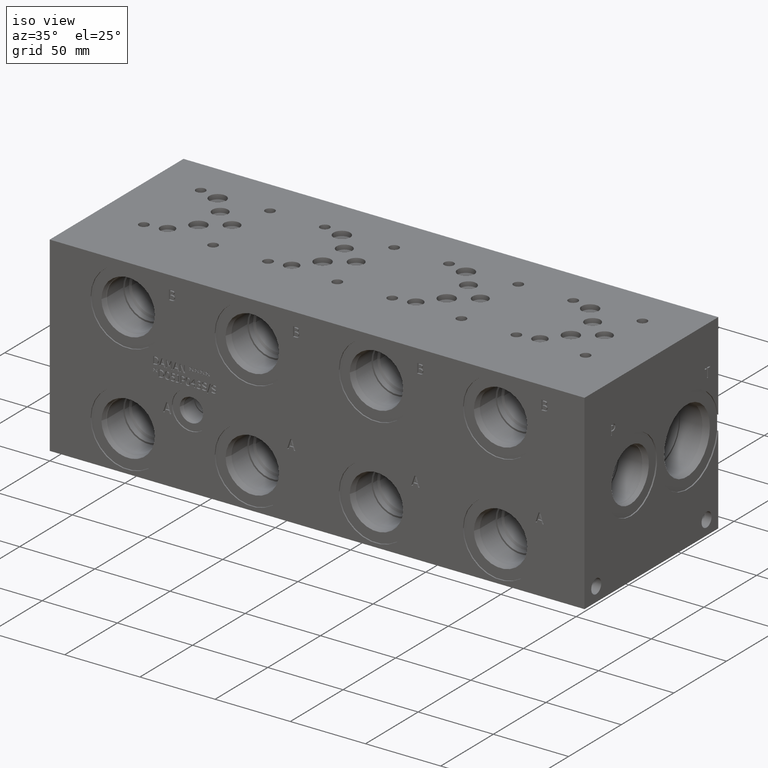
[diagram: clean part render]
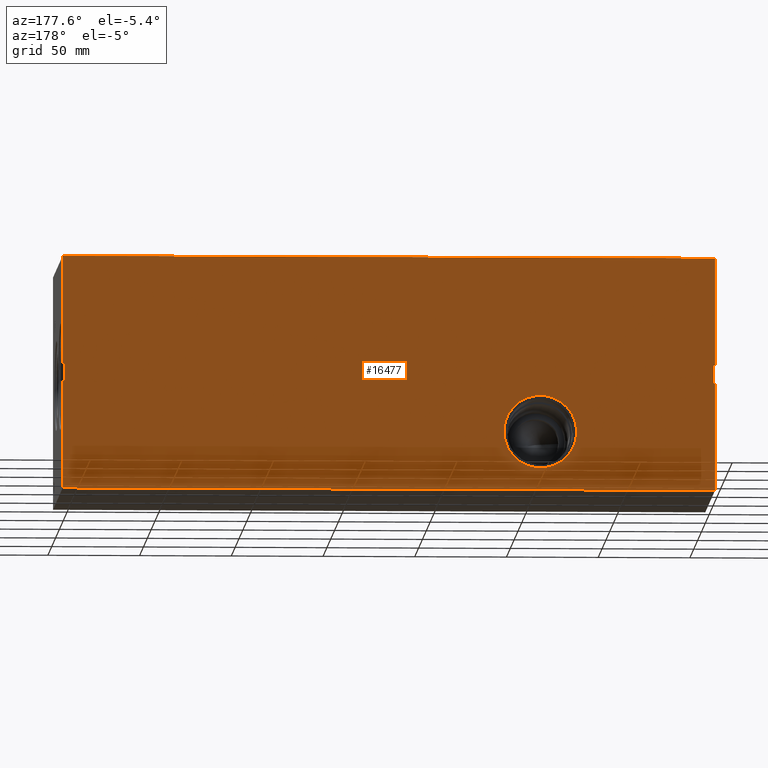
[diagram: tour spotlight — one face highlighted and labeled with its STEP entity id]
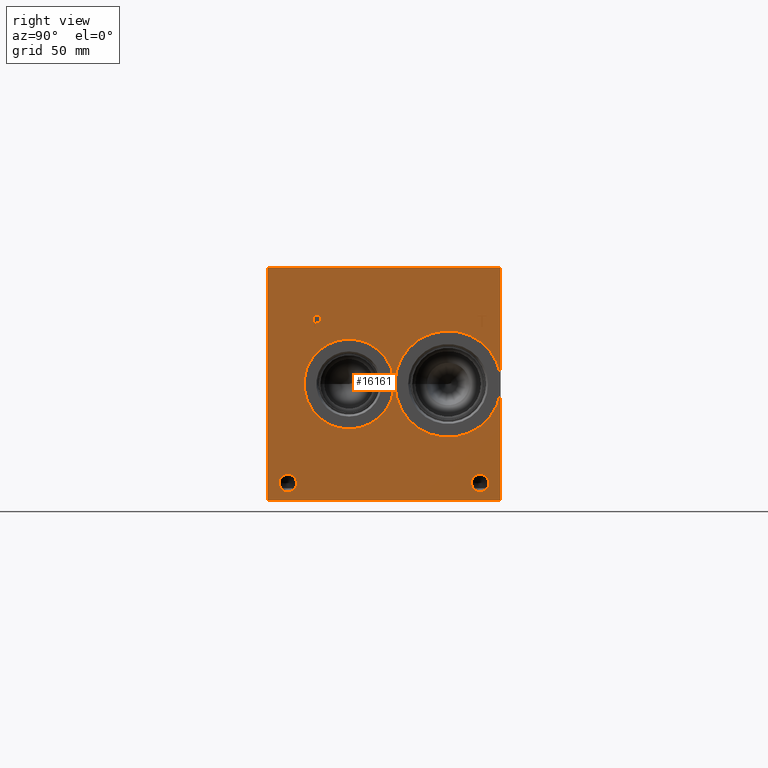
[diagram: tour spotlight — one face highlighted and labeled with its STEP entity id]
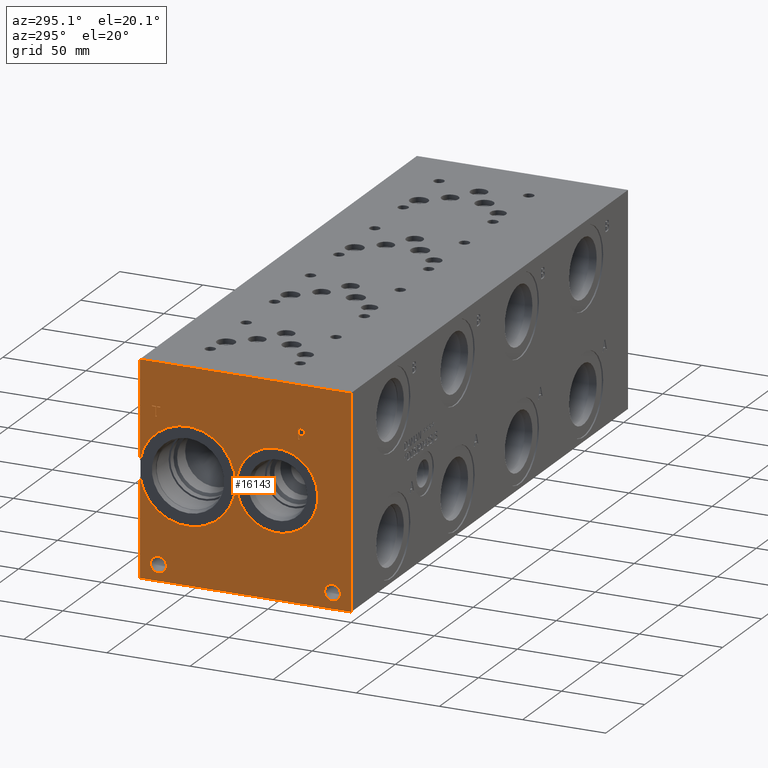
[diagram: tour spotlight — one face highlighted and labeled with its STEP entity id]
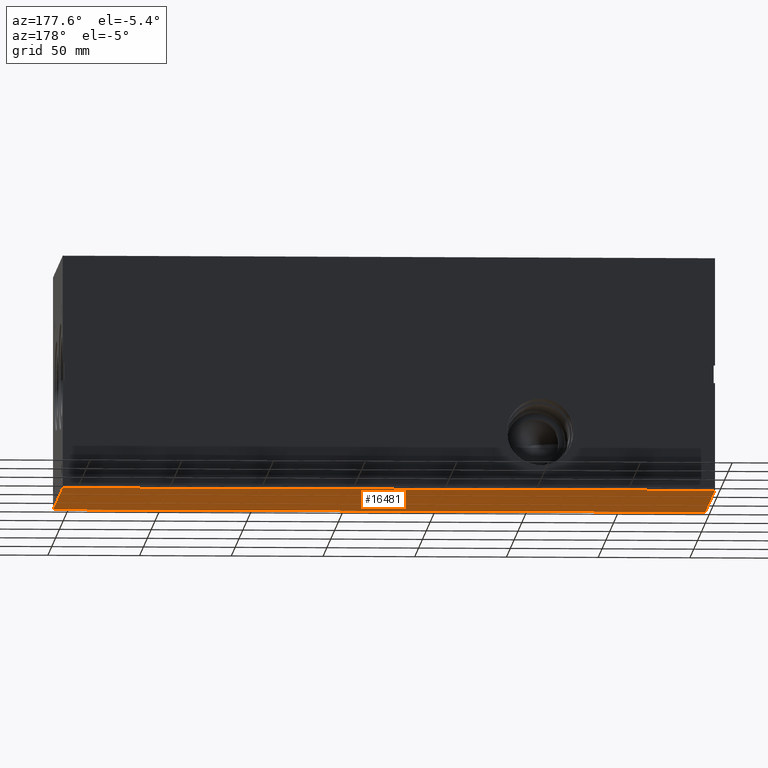
[diagram: tour spotlight — one face highlighted and labeled with its STEP entity id]
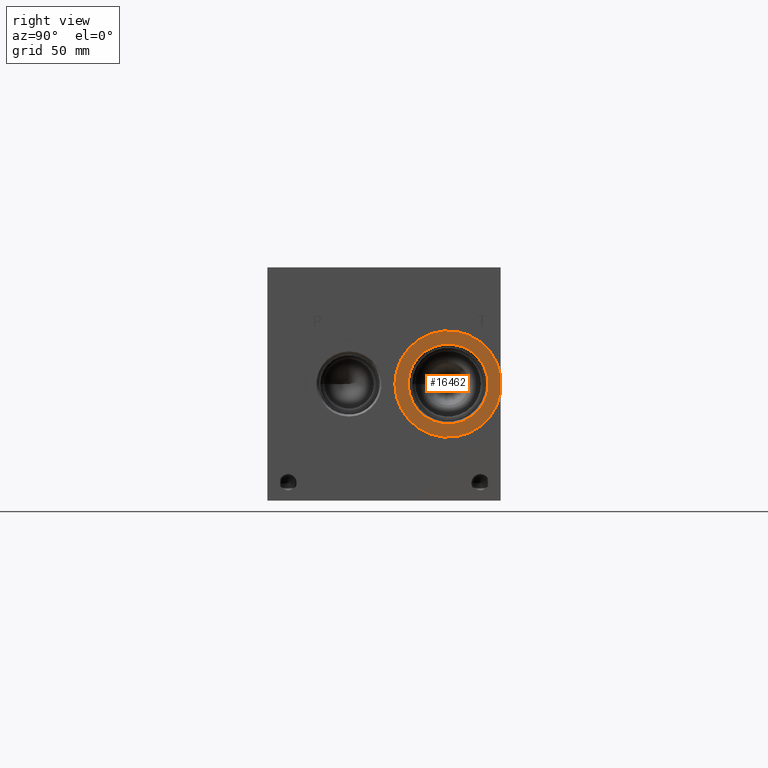
[diagram: tour spotlight — one face highlighted and labeled with its STEP entity id]
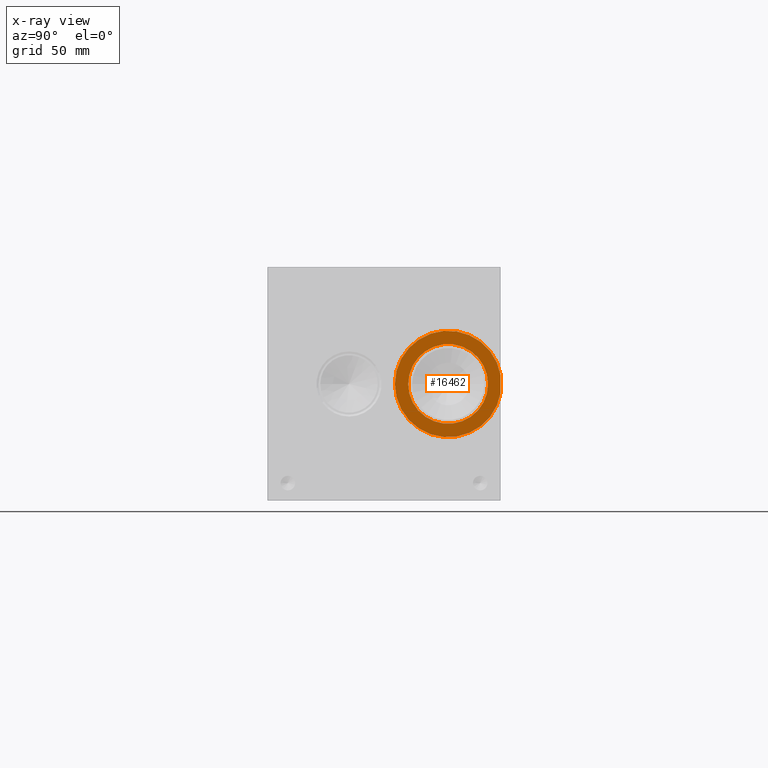
[diagram: x-ray of the same camera — body ghosted, this tour face saturated]
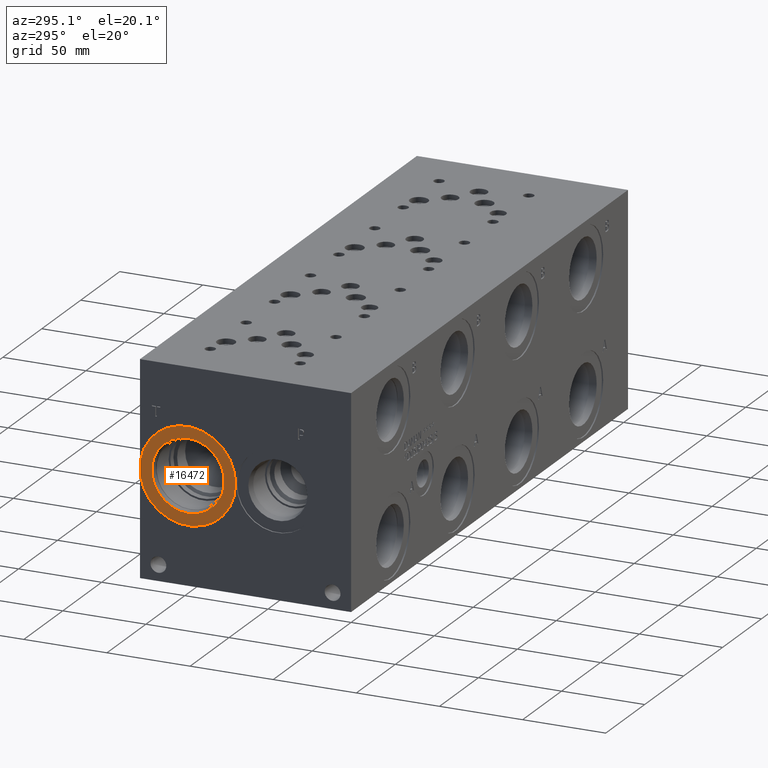
[diagram: tour spotlight — one face highlighted and labeled with its STEP entity id]
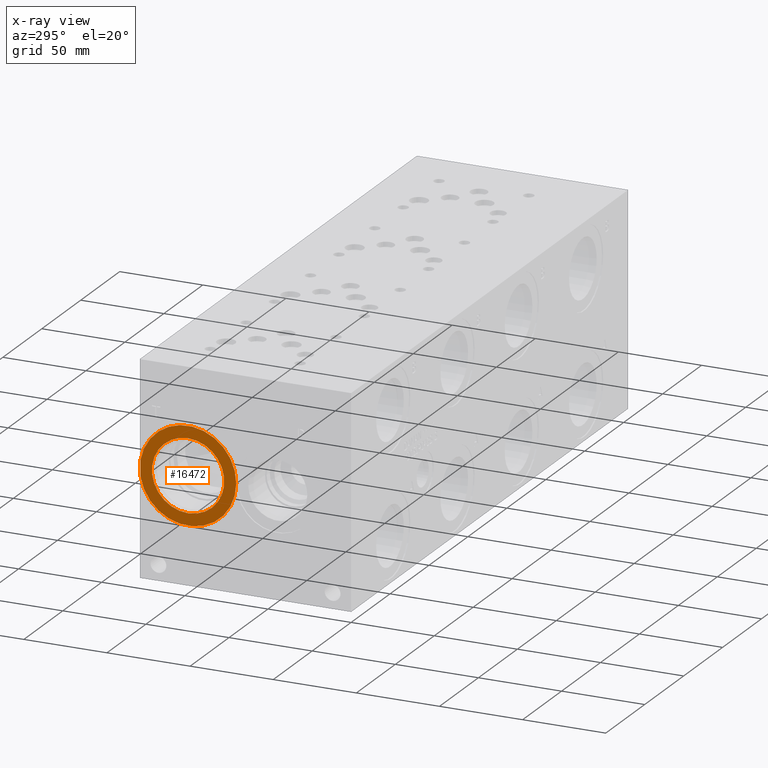
[diagram: x-ray of the same camera — body ghosted, this tour face saturated]
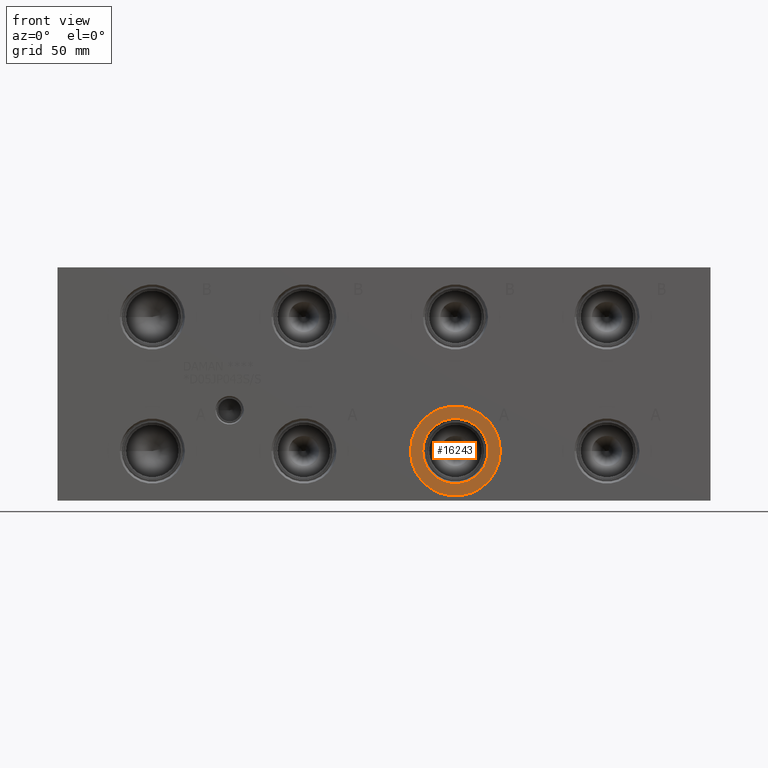
[diagram: tour spotlight — one face highlighted and labeled with its STEP entity id]
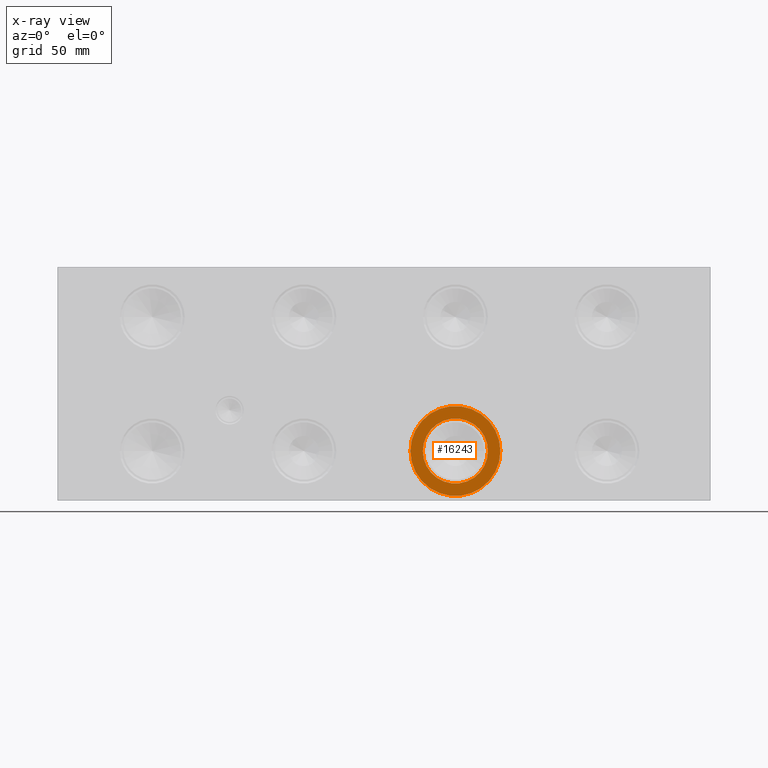
[diagram: x-ray of the same camera — body ghosted, this tour face saturated]
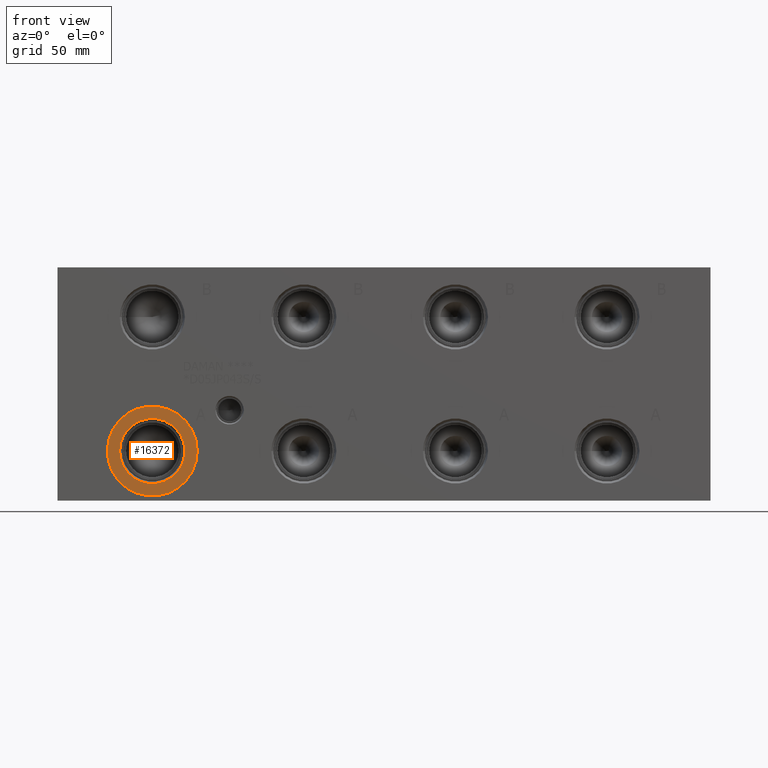
[diagram: tour spotlight — one face highlighted and labeled with its STEP entity id]
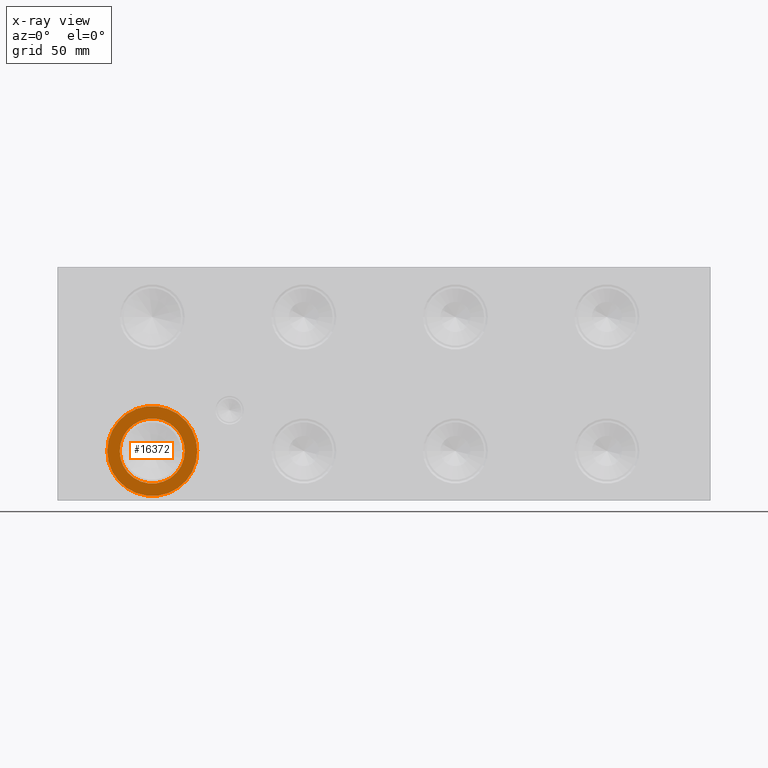
[diagram: x-ray of the same camera — body ghosted, this tour face saturated]
A machine part: a face-by-face anatomy tour. The part has 865 B-rep faces; the first image is the clean iso view, then the 8 largest visible faces are spotlighted one at a time (largest first), each with its STEP entity span.

Face 1 — auxiliary view, entity #16477. In plain terms, the highlighted planar face has unit normal (0, 1, 0).
Definition (entity closure, byte-faithful):
#482=CIRCLE('',#16903,19.8374);
#483=CIRCLE('',#16904,19.8374);
#1448=FACE_BOUND('',#3330,.T.);
#2345=FACE_OUTER_BOUND('',#3329,.T.);
#3329=EDGE_LOOP('',(#14538,#14539,#14540,#14541,#14542,#14543,#14544,#14545,
#14546,#14547,#14548,#14549));
#3330=EDGE_LOOP('',(#14550,#14551));
#4441=LINE('',#26749,#5852);
#4444=LINE('',#26753,#5855);
#4485=LINE('',#26988,#5896);
#4488=LINE('',#26992,#5899);
#4765=LINE('',#28561,#6176);
#4766=LINE('',#28566,#6177);
#4767=LINE('',#28567,#6178);
#4774=LINE('',#28606,#6185);
#4775=LINE('',#28613,#6186);
#4776=LINE('',#28614,#6187);
#4780=LINE('',#28630,#6191);
#4781=LINE('',#28631,#6192);
#5852=VECTOR('',#19475,10.);
#5855=VECTOR('',#19478,10.);
#5896=VECTOR('',#19553,10.);
#5899=VECTOR('',#19556,10.);
#6176=VECTOR('',#21347,10.);
#6177=VECTOR('',#21354,10.);
#6178=VECTOR('',#21355,10.);
#6185=VECTOR('',#21400,10.);
#6186=VECTOR('',#21409,10.);
#6187=VECTOR('',#21410,10.);
#6191=VECTOR('',#21430,10.);
#6192=VECTOR('',#21431,10.);
#7167=VERTEX_POINT('',#26745);
#7168=VERTEX_POINT('',#26746);
#7169=VERTEX_POINT('',#26748);
#7170=VERTEX_POINT('',#26751);
#7217=VERTEX_POINT('',#26984);
#7218=VERTEX_POINT('',#26985);
#7219=VERTEX_POINT('',#26987);
#7220=VERTEX_POINT('',#26990);
#7251=VERTEX_POINT('',#27088);
#7252=VERTEX_POINT('',#27089);
#7754=VERTEX_POINT('',#28559);
#7755=VERTEX_POINT('',#28560);
#7768=VERTEX_POINT('',#28604);
#7769=VERTEX_POINT('',#28605);
#9227=EDGE_CURVE('',#7169,#7168,#4441,.T.);
#9230=EDGE_CURVE('',#7167,#7170,#4444,.T.);
#9294=EDGE_CURVE('',#7218,#7219,#4485,.T.);
#9297=EDGE_CURVE('',#7220,#7217,#4488,.T.);
#9344=EDGE_CURVE('',#7251,#7252,#482,.T.);
#9345=EDGE_CURVE('',#7252,#7251,#483,.T.);
#10030=EDGE_CURVE('',#7754,#7755,#4765,.T.);
#10033=EDGE_CURVE('',#7755,#7217,#4766,.T.);
#10034=EDGE_CURVE('',#7218,#7754,#4767,.T.);
#10051=EDGE_CURVE('',#7768,#7769,#4774,.T.);
#10055=EDGE_CURVE('',#7168,#7768,#4775,.T.);
#10056=EDGE_CURVE('',#7769,#7167,#4776,.T.);
#10064=EDGE_CURVE('',#7220,#7169,#4780,.T.);
#10065=EDGE_CURVE('',#7219,#7170,#4781,.T.);
#14538=ORIENTED_EDGE('',*,*,#10033,.T.);
#14539=ORIENTED_EDGE('',*,*,#9297,.F.);
#14540=ORIENTED_EDGE('',*,*,#10064,.T.);
#14541=ORIENTED_EDGE('',*,*,#9227,.T.);
#14542=ORIENTED_EDGE('',*,*,#10055,.T.);
#14543=ORIENTED_EDGE('',*,*,#10051,.T.);
#14544=ORIENTED_EDGE('',*,*,#10056,.T.);
#14545=ORIENTED_EDGE('',*,*,#9230,.T.);
#14546=ORIENTED_EDGE('',*,*,#10065,.F.);
#14547=ORIENTED_EDGE('',*,*,#9294,.F.);
#14548=ORIENTED_EDGE('',*,*,#10034,.T.);
#14549=ORIENTED_EDGE('',*,*,#10030,.T.);
#14550=ORIENTED_EDGE('',*,*,#9344,.T.);
#14551=ORIENTED_EDGE('',*,*,#9345,.T.);
#15070=PLANE('',#17668);
#16477=ADVANCED_FACE('',(#2345,#1448),#15070,.T.);
#16903=AXIS2_PLACEMENT_3D('',#27090,#19647,#19648);
#16904=AXIS2_PLACEMENT_3D('',#27091,#19649,#19650);
#17668=AXIS2_PLACEMENT_3D('',#28629,#21428,#21429);
#19475=DIRECTION('',(0.,0.,1.));
#19478=DIRECTION('',(0.,0.,1.));
#19553=DIRECTION('',(0.,0.,1.));
#19556=DIRECTION('',(0.,0.,1.));
#19647=DIRECTION('center_axis',(0.,-1.,0.));
#19648=DIRECTION('ref_axis',(1.,0.,0.));
#19649=DIRECTION('center_axis',(0.,-1.,0.));
#19650=DIRECTION('ref_axis',(1.,0.,0.));
#21347=DIRECTION('',(0.,0.,-1.));
#21354=DIRECTION('',(1.,0.,0.));
#21355=DIRECTION('',(-1.,0.,0.));
#21400=DIRECTION('',(0.,0.,1.));
#21409=DIRECTION('',(1.,0.,0.));
#21410=DIRECTION('',(-1.,0.,0.));
#21428=DIRECTION('center_axis',(0.,1.,0.));
#21429=DIRECTION('ref_axis',(-1.,0.,0.));
#21430=DIRECTION('',(-1.,0.,0.));
#21431=DIRECTION('',(-1.,0.,0.));
#26745=CARTESIAN_POINT('',(0.,127.,68.3364161276714));
#26746=CARTESIAN_POINT('',(0.,127.,58.6635838723286));
#26748=CARTESIAN_POINT('',(0.,127.,0.));
#26749=CARTESIAN_POINT('',(0.,127.,0.));
#26751=CARTESIAN_POINT('',(0.,127.,127.));
#26753=CARTESIAN_POINT('',(0.,127.,0.));
#26984=CARTESIAN_POINT('',(355.6,127.,58.6635838723286));
#26985=CARTESIAN_POINT('',(355.6,127.,68.3364161276714));
#26987=CARTESIAN_POINT('',(355.6,127.,127.));
#26988=CARTESIAN_POINT('',(355.6,127.,0.));
#26990=CARTESIAN_POINT('',(355.6,127.,0.));
#26992=CARTESIAN_POINT('',(355.6,127.,0.));
#27088=CARTESIAN_POINT('',(115.0874,127.,31.75));
#27089=CARTESIAN_POINT('',(75.4126,127.,31.75));
#27090=CARTESIAN_POINT('Origin',(95.25,127.,31.75));
#27091=CARTESIAN_POINT('Origin',(95.25,127.,31.75));
#28559=CARTESIAN_POINT('',(354.8126,127.,68.3364161276714));
#28560=CARTESIAN_POINT('',(354.8126,127.,58.6635838723286));
#28561=CARTESIAN_POINT('',(354.8126,127.,31.75));
#28566=CARTESIAN_POINT('',(355.2063,127.,58.6635838723286));
#28567=CARTESIAN_POINT('',(355.2063,127.,68.3364161276714));
#28604=CARTESIAN_POINT('',(0.787400000000034,127.,58.6635838723286));
#28605=CARTESIAN_POINT('',(0.787400000000034,127.,68.3364161276714));
#28606=CARTESIAN_POINT('',(0.787400000000034,127.,42.62755));
#28613=CARTESIAN_POINT('',(0.393699999999981,127.,58.6635838723286));
#28614=CARTESIAN_POINT('',(0.393699999999981,127.,68.3364161276714));
#28629=CARTESIAN_POINT('Origin',(355.6,127.,0.));
#28630=CARTESIAN_POINT('',(355.6,127.,0.));
#28631=CARTESIAN_POINT('',(355.6,127.,127.));

Face 2 — right view, entity #16161. In plain terms, the highlighted planar face has unit normal (1, 0, 0).
Definition (entity closure, byte-faithful):
#475=CIRCLE('',#16877,28.9814);
#476=CIRCLE('',#16878,24.4856);
#477=CIRCLE('',#16879,24.4856);
#478=CIRCLE('',#16880,4.7625);
#479=CIRCLE('',#16881,4.7625);
#480=CIRCLE('',#16882,4.7625);
#481=CIRCLE('',#16883,4.7625);
#1321=B_SPLINE_CURVE_WITH_KNOTS('',2,(#26886,#26887,#26888,#26889),
 .UNSPECIFIED.,.F.,.F.,(3,1,3),(0.,1.,2.),.UNSPECIFIED.);
#1323=B_SPLINE_CURVE_WITH_KNOTS('',2,(#26907,#26908,#26909,#26910),
 .UNSPECIFIED.,.F.,.F.,(3,1,3),(0.,1.,2.),.UNSPECIFIED.);
#1325=B_SPLINE_CURVE_WITH_KNOTS('',2,(#26956,#26957,#26958,#26959),
 .UNSPECIFIED.,.F.,.F.,(3,1,3),(0.,1.,2.),.UNSPECIFIED.);
#1327=B_SPLINE_CURVE_WITH_KNOTS('',2,(#26974,#26975,#26976,#26977),
 .UNSPECIFIED.,.F.,.F.,(3,1,3),(0.,1.,2.),.UNSPECIFIED.);
#1394=FACE_BOUND('',#2960,.T.);
#1395=FACE_BOUND('',#2961,.T.);
#1396=FACE_BOUND('',#2962,.T.);
#1397=FACE_BOUND('',#2963,.T.);
#1398=FACE_BOUND('',#2964,.T.);
#2029=FACE_OUTER_BOUND('',#2959,.T.);
#2959=EDGE_LOOP('',(#13030,#13031,#13032,#13033,#13034,#13035));
#2960=EDGE_LOOP('',(#13036,#13037));
#2961=EDGE_LOOP('',(#13038,#13039));
#2962=EDGE_LOOP('',(#13040,#13041));
#2963=EDGE_LOOP('',(#13042,#13043,#13044,#13045,#13046,#13047,#13048,#13049));
#2964=EDGE_LOOP('',(#13050,#13051,#13052,#13053,#13054,#13055,#13056,#13057,
#13058));
#3405=LINE('',#21513,#4816);
#4469=LINE('',#26919,#5880);
#4472=LINE('',#26925,#5883);
#4475=LINE('',#26931,#5886);
#4478=LINE('',#26937,#5889);
#4481=LINE('',#26943,#5892);
#4485=LINE('',#26988,#5896);
#4486=LINE('',#26989,#5897);
#4487=LINE('',#26991,#5898);
#4488=LINE('',#26992,#5899);
#4489=LINE('',#27007,#5900);
#4490=LINE('',#27009,#5901);
#4491=LINE('',#27011,#5902);
#4492=LINE('',#27013,#5903);
#4493=LINE('',#27015,#5904);
#4494=LINE('',#27017,#5905);
#4495=LINE('',#27019,#5906);
#4496=LINE('',#27020,#5907);
#4816=VECTOR('',#17735,10.);
#5880=VECTOR('',#19523,10.);
#5883=VECTOR('',#19528,10.);
#5886=VECTOR('',#19533,10.);
#5889=VECTOR('',#19538,10.);
#5892=VECTOR('',#19543,10.);
#5896=VECTOR('',#19553,10.);
#5897=VECTOR('',#19554,10.);
#5898=VECTOR('',#19555,10.);
#5899=VECTOR('',#19556,10.);
#5900=VECTOR('',#19569,10.);
#5901=VECTOR('',#19570,10.);
#5902=VECTOR('',#19571,10.);
#5903=VECTOR('',#19572,10.);
#5904=VECTOR('',#19573,10.);
#5905=VECTOR('',#19574,10.);
#5906=VECTOR('',#19575,10.);
#5907=VECTOR('',#19576,10.);
#6216=VERTEX_POINT('',#21510);
#6217=VERTEX_POINT('',#21512);
#7199=VERTEX_POINT('',#26884);
#7200=VERTEX_POINT('',#26885);
#7203=VERTEX_POINT('',#26906);
#7205=VERTEX_POINT('',#26918);
#7207=VERTEX_POINT('',#26924);
#7209=VERTEX_POINT('',#26930);
#7211=VERTEX_POINT('',#26936);
#7213=VERTEX_POINT('',#26942);
#7215=VERTEX_POINT('',#26955);
#7217=VERTEX_POINT('',#26984);
#7218=VERTEX_POINT('',#26985);
#7219=VERTEX_POINT('',#26987);
#7220=VERTEX_POINT('',#26990);
#7221=VERTEX_POINT('',#26993);
#7222=VERTEX_POINT('',#26994);
#7223=VERTEX_POINT('',#26997);
#7224=VERTEX_POINT('',#26998);
#7225=VERTEX_POINT('',#27001);
#7226=VERTEX_POINT('',#27002);
#7227=VERTEX_POINT('',#27005);
#7228=VERTEX_POINT('',#27006);
#7229=VERTEX_POINT('',#27008);
#7230=VERTEX_POINT('',#27010);
#7231=VERTEX_POINT('',#27012);
#7232=VERTEX_POINT('',#27014);
#7233=VERTEX_POINT('',#27016);
#7234=VERTEX_POINT('',#27018);
#7810=EDGE_CURVE('',#6216,#6217,#3405,.T.);
#9266=EDGE_CURVE('',#7199,#7200,#1321,.T.);
#9270=EDGE_CURVE('',#7203,#7199,#1323,.T.);
#9273=EDGE_CURVE('',#7205,#7203,#4469,.T.);
#9276=EDGE_CURVE('',#7207,#7205,#4472,.T.);
#9279=EDGE_CURVE('',#7209,#7207,#4475,.T.);
#9282=EDGE_CURVE('',#7211,#7209,#4478,.T.);
#9285=EDGE_CURVE('',#7213,#7211,#4481,.T.);
#9288=EDGE_CURVE('',#7215,#7213,#1325,.T.);
#9291=EDGE_CURVE('',#7200,#7215,#1327,.T.);
#9293=EDGE_CURVE('',#7217,#7218,#475,.T.);
#9294=EDGE_CURVE('',#7218,#7219,#4485,.T.);
#9295=EDGE_CURVE('',#6217,#7219,#4486,.T.);
#9296=EDGE_CURVE('',#6216,#7220,#4487,.T.);
#9297=EDGE_CURVE('',#7220,#7217,#4488,.T.);
#9298=EDGE_CURVE('',#7221,#7222,#476,.T.);
#9299=EDGE_CURVE('',#7222,#7221,#477,.T.);
#9300=EDGE_CURVE('',#7223,#7224,#478,.T.);
#9301=EDGE_CURVE('',#7224,#7223,#479,.T.);
#9302=EDGE_CURVE('',#7225,#7226,#480,.T.);
#9303=EDGE_CURVE('',#7226,#7225,#481,.T.);
#9304=EDGE_CURVE('',#7227,#7228,#4489,.T.);
#9305=EDGE_CURVE('',#7228,#7229,#4490,.T.);
#9306=EDGE_CURVE('',#7229,#7230,#4491,.T.);
#9307=EDGE_CURVE('',#7230,#7231,#4492,.T.);
#9308=EDGE_CURVE('',#7231,#7232,#4493,.T.);
#9309=EDGE_CURVE('',#7232,#7233,#4494,.T.);
#9310=EDGE_CURVE('',#7233,#7234,#4495,.T.);
#9311=EDGE_CURVE('',#7234,#7227,#4496,.T.);
#13030=ORIENTED_EDGE('',*,*,#9293,.T.);
#13031=ORIENTED_EDGE('',*,*,#9294,.T.);
#13032=ORIENTED_EDGE('',*,*,#9295,.F.);
#13033=ORIENTED_EDGE('',*,*,#7810,.F.);
#13034=ORIENTED_EDGE('',*,*,#9296,.T.);
#13035=ORIENTED_EDGE('',*,*,#9297,.T.);
#13036=ORIENTED_EDGE('',*,*,#9298,.T.);
#13037=ORIENTED_EDGE('',*,*,#9299,.T.);
#13038=ORIENTED_EDGE('',*,*,#9300,.T.);
#13039=ORIENTED_EDGE('',*,*,#9301,.T.);
#13040=ORIENTED_EDGE('',*,*,#9302,.T.);
#13041=ORIENTED_EDGE('',*,*,#9303,.T.);
#13042=ORIENTED_EDGE('',*,*,#9304,.T.);
#13043=ORIENTED_EDGE('',*,*,#9305,.T.);
#13044=ORIENTED_EDGE('',*,*,#9306,.T.);
#13045=ORIENTED_EDGE('',*,*,#9307,.T.);
#13046=ORIENTED_EDGE('',*,*,#9308,.T.);
#13047=ORIENTED_EDGE('',*,*,#9309,.T.);
#13048=ORIENTED_EDGE('',*,*,#9310,.T.);
#13049=ORIENTED_EDGE('',*,*,#9311,.T.);
#13050=ORIENTED_EDGE('',*,*,#9266,.T.);
#13051=ORIENTED_EDGE('',*,*,#9291,.T.);
#13052=ORIENTED_EDGE('',*,*,#9288,.T.);
#13053=ORIENTED_EDGE('',*,*,#9285,.T.);
#13054=ORIENTED_EDGE('',*,*,#9282,.T.);
#13055=ORIENTED_EDGE('',*,*,#9279,.T.);
#13056=ORIENTED_EDGE('',*,*,#9276,.T.);
#13057=ORIENTED_EDGE('',*,*,#9273,.T.);
#13058=ORIENTED_EDGE('',*,*,#9270,.T.);
#15001=PLANE('',#16876);
#16161=ADVANCED_FACE('',(#2029,#1394,#1395,#1396,#1397,#1398),#15001,.T.);
#16876=AXIS2_PLACEMENT_3D('',#26983,#19549,#19550);
#16877=AXIS2_PLACEMENT_3D('',#26986,#19551,#19552);
#16878=AXIS2_PLACEMENT_3D('',#26995,#19557,#19558);
#16879=AXIS2_PLACEMENT_3D('',#26996,#19559,#19560);
#16880=AXIS2_PLACEMENT_3D('',#26999,#19561,#19562);
#16881=AXIS2_PLACEMENT_3D('',#27000,#19563,#19564);
#16882=AXIS2_PLACEMENT_3D('',#27003,#19565,#19566);
#16883=AXIS2_PLACEMENT_3D('',#27004,#19567,#19568);
#17735=DIRECTION('',(0.,0.,1.));
#19523=DIRECTION('',(0.,1.,0.));
#19528=DIRECTION('',(0.,0.,1.));
#19533=DIRECTION('',(0.,-1.,0.));
#19538=DIRECTION('',(0.,0.,-1.));
#19543=DIRECTION('',(0.,-1.,0.));
#19549=DIRECTION('center_axis',(1.,0.,0.));
#19550=DIRECTION('ref_axis',(0.,1.,0.));
#19551=DIRECTION('center_axis',(-1.,0.,0.));
#19552=DIRECTION('ref_axis',(0.,1.,0.));
#19553=DIRECTION('',(0.,0.,1.));
#19554=DIRECTION('',(0.,1.,0.));
#19555=DIRECTION('',(0.,1.,0.));
#19556=DIRECTION('',(0.,0.,1.));
#19557=DIRECTION('center_axis',(-1.,0.,0.));
#19558=DIRECTION('ref_axis',(0.,0.,-1.));
#19559=DIRECTION('center_axis',(-1.,0.,0.));
#19560=DIRECTION('ref_axis',(0.,0.,-1.));
#19561=DIRECTION('center_axis',(-1.,0.,0.));
#19562=DIRECTION('ref_axis',(0.,1.,0.));
#19563=DIRECTION('center_axis',(-1.,0.,0.));
#19564=DIRECTION('ref_axis',(0.,1.,0.));
#19565=DIRECTION('center_axis',(-1.,0.,0.));
#19566=DIRECTION('ref_axis',(0.,1.,0.));
#19567=DIRECTION('center_axis',(-1.,0.,0.));
#19568=DIRECTION('ref_axis',(0.,1.,0.));
#19569=DIRECTION('',(0.,-1.,0.));
#19570=DIRECTION('',(0.,0.,1.));
#19571=DIRECTION('',(0.,-1.,0.));
#19572=DIRECTION('',(0.,0.,1.));
#19573=DIRECTION('',(0.,1.,0.));
#19574=DIRECTION('',(0.,0.,-1.));
#19575=DIRECTION('',(0.,-1.,0.));
#19576=DIRECTION('',(0.,0.,-1.));
#21510=CARTESIAN_POINT('',(355.6,0.,0.));
#21512=CARTESIAN_POINT('',(355.6,0.,127.));
#21513=CARTESIAN_POINT('',(355.6,0.,0.));
#26884=CARTESIAN_POINT('',(355.6,28.5068172023594,100.410018143971));
#26885=CARTESIAN_POINT('',(355.6,29.263259654532,98.8919873726039));
#26886=CARTESIAN_POINT('Ctrl Pts',(355.6,28.5068172023594,100.410018143971));
#26887=CARTESIAN_POINT('Ctrl Pts',(355.6,28.8618820268486,100.168162393956));
#26888=CARTESIAN_POINT('Ctrl Pts',(355.6,29.263259654532,99.4220116758269));
#26889=CARTESIAN_POINT('Ctrl Pts',(355.6,29.263259654532,98.8919873726039));
#26906=CARTESIAN_POINT('',(355.6,26.8447021543883,100.806249904633));
#26907=CARTESIAN_POINT('Ctrl Pts',(355.6,26.8447021543883,100.806249904633));
#26908=CARTESIAN_POINT('Ctrl Pts',(355.6,27.4107475267624,100.806249904633));
#26909=CARTESIAN_POINT('Ctrl Pts',(355.6,28.203211048086,100.620998691856));
#26910=CARTESIAN_POINT('Ctrl Pts',(355.6,28.5068172023594,100.410018143971));
#26918=CARTESIAN_POINT('',(355.6,25.2494833776978,100.806249904633));
#26919=CARTESIAN_POINT('',(355.6,12.6247416888489,100.806249904633));
#26924=CARTESIAN_POINT('',(355.6,25.2494833776978,94.45625));
#26925=CARTESIAN_POINT('',(355.6,25.2494833776978,47.228125));
#26930=CARTESIAN_POINT('',(355.6,26.0934055692373,94.45625));
#26931=CARTESIAN_POINT('',(355.6,13.0467027846186,94.45625));
#26936=CARTESIAN_POINT('',(355.6,26.0934055692373,96.8233488299279));
#26937=CARTESIAN_POINT('',(355.6,26.0934055692373,48.4116744149639));
#26942=CARTESIAN_POINT('',(355.6,26.8086810852372,96.8233488299279));
#26943=CARTESIAN_POINT('',(355.6,13.4043405426186,96.8233488299279));
#26955=CARTESIAN_POINT('',(355.6,28.7075060162011,97.4820198086904));
#26956=CARTESIAN_POINT('Ctrl Pts',(355.6,28.7075060162011,97.4820198086904));
#26957=CARTESIAN_POINT('Ctrl Pts',(355.6,28.3781705268198,97.1578301863307));
#26958=CARTESIAN_POINT('Ctrl Pts',(355.6,27.4879355320861,96.8233488299279));
#26959=CARTESIAN_POINT('Ctrl Pts',(355.6,26.8086810852372,96.8233488299279));
#26974=CARTESIAN_POINT('Ctrl Pts',(355.6,29.263259654532,98.8919873726039));
#26975=CARTESIAN_POINT('Ctrl Pts',(355.6,29.263259654532,98.4803180108774));
#26976=CARTESIAN_POINT('Ctrl Pts',(355.6,28.9699452343018,97.7393131597695));
#26977=CARTESIAN_POINT('Ctrl Pts',(355.6,28.7075060162011,97.4820198086904));
#26983=CARTESIAN_POINT('Origin',(355.6,0.,0.));
#26984=CARTESIAN_POINT('',(355.6,127.,58.6635838723286));
#26985=CARTESIAN_POINT('',(355.6,127.,68.3364161276714));
#26986=CARTESIAN_POINT('Origin',(355.6,98.425,63.5));
#26987=CARTESIAN_POINT('',(355.6,127.,127.));
#26988=CARTESIAN_POINT('',(355.6,127.,0.));
#26989=CARTESIAN_POINT('',(355.6,0.,127.));
#26990=CARTESIAN_POINT('',(355.6,127.,0.));
#26991=CARTESIAN_POINT('',(355.6,0.,0.));
#26992=CARTESIAN_POINT('',(355.6,127.,0.));
#26993=CARTESIAN_POINT('',(355.6,44.45,39.0144));
#26994=CARTESIAN_POINT('',(355.6,44.45,87.9856));
#26995=CARTESIAN_POINT('Origin',(355.6,44.45,63.5));
#26996=CARTESIAN_POINT('Origin',(355.6,44.45,63.5));
#26997=CARTESIAN_POINT('',(355.6,120.6627,9.525));
#26998=CARTESIAN_POINT('',(355.6,111.1377,9.525));
#26999=CARTESIAN_POINT('Origin',(355.6,115.9002,9.525));
#27000=CARTESIAN_POINT('Origin',(355.6,115.9002,9.525));
#27001=CARTESIAN_POINT('',(355.6,15.8877,9.525));
#27002=CARTESIAN_POINT('',(355.6,6.3627,9.525));
#27003=CARTESIAN_POINT('Origin',(355.6,11.1252,9.525));
#27004=CARTESIAN_POINT('Origin',(355.6,11.1252,9.525));
#27005=CARTESIAN_POINT('',(355.6,117.269165271453,94.45625));
#27006=CARTESIAN_POINT('',(355.6,116.425243079913,94.45625));
#27007=CARTESIAN_POINT('',(355.6,58.6345826357265,94.45625));
#27008=CARTESIAN_POINT('',(355.6,116.425243079913,100.054953319482));
#27009=CARTESIAN_POINT('',(355.6,116.425243079913,47.228125));
#27010=CARTESIAN_POINT('',(355.6,114.294854132978,100.054953319482));
#27011=CARTESIAN_POINT('',(355.6,58.2126215399567,100.054953319482));
#27012=CARTESIAN_POINT('',(355.6,114.294854132978,100.806249904633));
#27013=CARTESIAN_POINT('',(355.6,114.294854132978,50.0274766597408));
#27014=CARTESIAN_POINT('',(355.6,119.399554218388,100.806249904633));
#27015=CARTESIAN_POINT('',(355.6,57.1474270664892,100.806249904633));
#27016=CARTESIAN_POINT('',(355.6,119.399554218388,100.054953319482));
#27017=CARTESIAN_POINT('',(355.6,119.399554218388,50.4031249523163));
#27018=CARTESIAN_POINT('',(355.6,117.269165271453,100.054953319482));
#27019=CARTESIAN_POINT('',(355.6,59.699777109194,100.054953319482));
#27020=CARTESIAN_POINT('',(355.6,117.269165271453,50.0274766597408));

Face 3 — auxiliary view, entity #16143. In plain terms, the highlighted planar face has unit normal (-1, 0, 0).
Definition (entity closure, byte-faithful):
#468=CIRCLE('',#16860,28.9814);
#469=CIRCLE('',#16861,24.4856);
#470=CIRCLE('',#16862,24.4856);
#471=CIRCLE('',#16863,4.7625);
#472=CIRCLE('',#16864,4.7625);
#473=CIRCLE('',#16865,4.7625);
#474=CIRCLE('',#16866,4.7625);
#1305=B_SPLINE_CURVE_WITH_KNOTS('',2,(#26647,#26648,#26649,#26650),
 .UNSPECIFIED.,.F.,.F.,(3,1,3),(0.,1.,2.),.UNSPECIFIED.);
#1307=B_SPLINE_CURVE_WITH_KNOTS('',2,(#26668,#26669,#26670,#26671),
 .UNSPECIFIED.,.F.,.F.,(3,1,3),(0.,1.,2.),.UNSPECIFIED.);
#1309=B_SPLINE_CURVE_WITH_KNOTS('',2,(#26717,#26718,#26719,#26720),
 .UNSPECIFIED.,.F.,.F.,(3,1,3),(0.,1.,2.),.UNSPECIFIED.);
#1311=B_SPLINE_CURVE_WITH_KNOTS('',2,(#26735,#26736,#26737,#26738),
 .UNSPECIFIED.,.F.,.F.,(3,1,3),(0.,1.,2.),.UNSPECIFIED.);
#1388=FACE_BOUND('',#2936,.T.);
#1389=FACE_BOUND('',#2937,.T.);
#1390=FACE_BOUND('',#2938,.T.);
#1391=FACE_BOUND('',#2939,.T.);
#1392=FACE_BOUND('',#2940,.T.);
#2011=FACE_OUTER_BOUND('',#2935,.T.);
#2935=EDGE_LOOP('',(#12921,#12922,#12923,#12924,#12925,#12926));
#2936=EDGE_LOOP('',(#12927,#12928));
#2937=EDGE_LOOP('',(#12929,#12930));
#2938=EDGE_LOOP('',(#12931,#12932));
#2939=EDGE_LOOP('',(#12933,#12934,#12935,#12936,#12937,#12938,#12939,#12940));
#2940=EDGE_LOOP('',(#12941,#12942,#12943,#12944,#12945,#12946,#12947,#12948,
#12949));
#3407=LINE('',#21516,#4818);
#4425=LINE('',#26680,#5836);
#4428=LINE('',#26686,#5839);
#4431=LINE('',#26692,#5842);
#4434=LINE('',#26698,#5845);
#4437=LINE('',#26704,#5848);
#4441=LINE('',#26749,#5852);
#4442=LINE('',#26750,#5853);
#4443=LINE('',#26752,#5854);
#4444=LINE('',#26753,#5855);
#4445=LINE('',#26768,#5856);
#4446=LINE('',#26770,#5857);
#4447=LINE('',#26772,#5858);
#4448=LINE('',#26774,#5859);
#4449=LINE('',#26776,#5860);
#4450=LINE('',#26778,#5861);
#4451=LINE('',#26780,#5862);
#4452=LINE('',#26781,#5863);
#4818=VECTOR('',#17737,10.);
#5836=VECTOR('',#19445,10.);
#5839=VECTOR('',#19450,10.);
#5842=VECTOR('',#19455,10.);
#5845=VECTOR('',#19460,10.);
#5848=VECTOR('',#19465,10.);
#5852=VECTOR('',#19475,10.);
#5853=VECTOR('',#19476,10.);
#5854=VECTOR('',#19477,10.);
#5855=VECTOR('',#19478,10.);
#5856=VECTOR('',#19491,10.);
#5857=VECTOR('',#19492,10.);
#5858=VECTOR('',#19493,10.);
#5859=VECTOR('',#19494,10.);
#5860=VECTOR('',#19495,10.);
#5861=VECTOR('',#19496,10.);
#5862=VECTOR('',#19497,10.);
#5863=VECTOR('',#19498,10.);
#6215=VERTEX_POINT('',#21509);
#6218=VERTEX_POINT('',#21514);
#7149=VERTEX_POINT('',#26645);
#7150=VERTEX_POINT('',#26646);
#7153=VERTEX_POINT('',#26667);
#7155=VERTEX_POINT('',#26679);
#7157=VERTEX_POINT('',#26685);
#7159=VERTEX_POINT('',#26691);
#7161=VERTEX_POINT('',#26697);
#7163=VERTEX_POINT('',#26703);
#7165=VERTEX_POINT('',#26716);
#7167=VERTEX_POINT('',#26745);
#7168=VERTEX_POINT('',#26746);
#7169=VERTEX_POINT('',#26748);
#7170=VERTEX_POINT('',#26751);
#7171=VERTEX_POINT('',#26754);
#7172=VERTEX_POINT('',#26755);
#7173=VERTEX_POINT('',#26758);
#7174=VERTEX_POINT('',#26759);
#7175=VERTEX_POINT('',#26762);
#7176=VERTEX_POINT('',#26763);
#7177=VERTEX_POINT('',#26766);
#7178=VERTEX_POINT('',#26767);
#7179=VERTEX_POINT('',#26769);
#7180=VERTEX_POINT('',#26771);
#7181=VERTEX_POINT('',#26773);
#7182=VERTEX_POINT('',#26775);
#7183=VERTEX_POINT('',#26777);
#7184=VERTEX_POINT('',#26779);
#7812=EDGE_CURVE('',#6215,#6218,#3407,.T.);
#9199=EDGE_CURVE('',#7149,#7150,#1305,.T.);
#9203=EDGE_CURVE('',#7153,#7149,#1307,.T.);
#9206=EDGE_CURVE('',#7155,#7153,#4425,.T.);
#9209=EDGE_CURVE('',#7157,#7155,#4428,.T.);
#9212=EDGE_CURVE('',#7159,#7157,#4431,.T.);
#9215=EDGE_CURVE('',#7161,#7159,#4434,.T.);
#9218=EDGE_CURVE('',#7163,#7161,#4437,.T.);
#9221=EDGE_CURVE('',#7165,#7163,#1309,.T.);
#9224=EDGE_CURVE('',#7150,#7165,#1311,.T.);
#9226=EDGE_CURVE('',#7167,#7168,#468,.T.);
#9227=EDGE_CURVE('',#7169,#7168,#4441,.T.);
#9228=EDGE_CURVE('',#7169,#6215,#4442,.T.);
#9229=EDGE_CURVE('',#7170,#6218,#4443,.T.);
#9230=EDGE_CURVE('',#7167,#7170,#4444,.T.);
#9231=EDGE_CURVE('',#7171,#7172,#469,.T.);
#9232=EDGE_CURVE('',#7172,#7171,#470,.T.);
#9233=EDGE_CURVE('',#7173,#7174,#471,.T.);
#9234=EDGE_CURVE('',#7174,#7173,#472,.T.);
#9235=EDGE_CURVE('',#7175,#7176,#473,.T.);
#9236=EDGE_CURVE('',#7176,#7175,#474,.T.);
#9237=EDGE_CURVE('',#7177,#7178,#4445,.T.);
#9238=EDGE_CURVE('',#7178,#7179,#4446,.T.);
#9239=EDGE_CURVE('',#7179,#7180,#4447,.T.);
#9240=EDGE_CURVE('',#7180,#7181,#4448,.T.);
#9241=EDGE_CURVE('',#7181,#7182,#4449,.T.);
#9242=EDGE_CURVE('',#7182,#7183,#4450,.T.);
#9243=EDGE_CURVE('',#7183,#7184,#4451,.T.);
#9244=EDGE_CURVE('',#7184,#7177,#4452,.T.);
#12921=ORIENTED_EDGE('',*,*,#9226,.T.);
#12922=ORIENTED_EDGE('',*,*,#9227,.F.);
#12923=ORIENTED_EDGE('',*,*,#9228,.T.);
#12924=ORIENTED_EDGE('',*,*,#7812,.T.);
#12925=ORIENTED_EDGE('',*,*,#9229,.F.);
#12926=ORIENTED_EDGE('',*,*,#9230,.F.);
#12927=ORIENTED_EDGE('',*,*,#9231,.T.);
#12928=ORIENTED_EDGE('',*,*,#9232,.T.);
#12929=ORIENTED_EDGE('',*,*,#9233,.T.);
#12930=ORIENTED_EDGE('',*,*,#9234,.T.);
#12931=ORIENTED_EDGE('',*,*,#9235,.T.);
#12932=ORIENTED_EDGE('',*,*,#9236,.T.);
#12933=ORIENTED_EDGE('',*,*,#9237,.T.);
#12934=ORIENTED_EDGE('',*,*,#9238,.T.);
#12935=ORIENTED_EDGE('',*,*,#9239,.T.);
#12936=ORIENTED_EDGE('',*,*,#9240,.T.);
#12937=ORIENTED_EDGE('',*,*,#9241,.T.);
#12938=ORIENTED_EDGE('',*,*,#9242,.T.);
#12939=ORIENTED_EDGE('',*,*,#9243,.T.);
#12940=ORIENTED_EDGE('',*,*,#9244,.T.);
#12941=ORIENTED_EDGE('',*,*,#9199,.T.);
#12942=ORIENTED_EDGE('',*,*,#9224,.T.);
#12943=ORIENTED_EDGE('',*,*,#9221,.T.);
#12944=ORIENTED_EDGE('',*,*,#9218,.T.);
#12945=ORIENTED_EDGE('',*,*,#9215,.T.);
#12946=ORIENTED_EDGE('',*,*,#9212,.T.);
#12947=ORIENTED_EDGE('',*,*,#9209,.T.);
#12948=ORIENTED_EDGE('',*,*,#9206,.T.);
#12949=ORIENTED_EDGE('',*,*,#9203,.T.);
#14991=PLANE('',#16859);
#16143=ADVANCED_FACE('',(#2011,#1388,#1389,#1390,#1391,#1392),#14991,.T.);
#16859=AXIS2_PLACEMENT_3D('',#26744,#19471,#19472);
#16860=AXIS2_PLACEMENT_3D('',#26747,#19473,#19474);
#16861=AXIS2_PLACEMENT_3D('',#26756,#19479,#19480);
#16862=AXIS2_PLACEMENT_3D('',#26757,#19481,#19482);
#16863=AXIS2_PLACEMENT_3D('',#26760,#19483,#19484);
#16864=AXIS2_PLACEMENT_3D('',#26761,#19485,#19486);
#16865=AXIS2_PLACEMENT_3D('',#26764,#19487,#19488);
#16866=AXIS2_PLACEMENT_3D('',#26765,#19489,#19490);
#17737=DIRECTION('',(0.,0.,1.));
#19445=DIRECTION('',(0.,-1.,-1.11355060845355E-14));
#19450=DIRECTION('',(0.,-3.49676548440641E-15,1.));
#19455=DIRECTION('',(0.,1.,2.10488224768659E-14));
#19460=DIRECTION('',(0.,3.75218139804998E-15,-1.));
#19465=DIRECTION('',(0.,1.,0.));
#19471=DIRECTION('center_axis',(-1.,0.,0.));
#19472=DIRECTION('ref_axis',(0.,-1.,0.));
#19473=DIRECTION('center_axis',(1.,0.,0.));
#19474=DIRECTION('ref_axis',(0.,0.,1.));
#19475=DIRECTION('',(0.,0.,1.));
#19476=DIRECTION('',(0.,-1.,0.));
#19477=DIRECTION('',(0.,-1.,0.));
#19478=DIRECTION('',(0.,0.,1.));
#19479=DIRECTION('center_axis',(1.,0.,0.));
#19480=DIRECTION('ref_axis',(0.,1.,0.));
#19481=DIRECTION('center_axis',(1.,0.,0.));
#19482=DIRECTION('ref_axis',(0.,1.,0.));
#19483=DIRECTION('center_axis',(1.,0.,0.));
#19484=DIRECTION('ref_axis',(0.,1.,0.));
#19485=DIRECTION('center_axis',(1.,0.,0.));
#19486=DIRECTION('ref_axis',(0.,1.,0.));
#19487=DIRECTION('center_axis',(1.,0.,0.));
#19488=DIRECTION('ref_axis',(0.,1.,0.));
#19489=DIRECTION('center_axis',(1.,0.,0.));
#19490=DIRECTION('ref_axis',(0.,1.,0.));
#19491=DIRECTION('',(0.,1.,0.));
#19492=DIRECTION('',(0.,-3.17280044688051E-15,1.));
#19493=DIRECTION('',(0.,1.,0.));
#19494=DIRECTION('',(0.,0.,1.));
#19495=DIRECTION('',(0.,-1.,-3.47984565141734E-15));
#19496=DIRECTION('',(0.,0.,-1.));
#19497=DIRECTION('',(0.,1.,8.33818088455555E-15));
#19498=DIRECTION('',(0.,3.17280044688051E-15,-1.));
#21509=CARTESIAN_POINT('',(0.,0.,0.));
#21514=CARTESIAN_POINT('',(0.,0.,127.));
#21516=CARTESIAN_POINT('',(0.,0.,0.));
#26645=CARTESIAN_POINT('',(0.,28.6431827976406,101.203768143971));
#26646=CARTESIAN_POINT('',(0.,27.886740345468,99.6857373726039));
#26647=CARTESIAN_POINT('Ctrl Pts',(0.,28.6431827976406,101.203768143971));
#26648=CARTESIAN_POINT('Ctrl Pts',(0.,28.2881179731514,100.961912393956));
#26649=CARTESIAN_POINT('Ctrl Pts',(0.,27.886740345468,100.215761675827));
#26650=CARTESIAN_POINT('Ctrl Pts',(0.,27.886740345468,99.6857373726039));
#26667=CARTESIAN_POINT('',(0.,30.3052978456117,101.599999904633));
#26668=CARTESIAN_POINT('Ctrl Pts',(0.,30.3052978456117,101.599999904633));
#26669=CARTESIAN_POINT('Ctrl Pts',(0.,29.7392524732376,101.599999904633));
#26670=CARTESIAN_POINT('Ctrl Pts',(0.,28.946788951914,101.414748691856));
#26671=CARTESIAN_POINT('Ctrl Pts',(0.,28.6431827976406,101.203768143971));
#26679=CARTESIAN_POINT('',(0.,31.9005166223022,101.599999904633));
#26680=CARTESIAN_POINT('',(0.,79.4502583111505,101.599999904633));
#26685=CARTESIAN_POINT('',(0.,31.9005166223022,95.25));
#26686=CARTESIAN_POINT('',(0.,31.9005166223024,47.6249999999998));
#26691=CARTESIAN_POINT('',(0.,31.0565944307627,95.25));
#26692=CARTESIAN_POINT('',(0.,79.0282972153804,95.250000000001));
#26697=CARTESIAN_POINT('',(0.,31.0565944307627,97.6170988299279));
#26698=CARTESIAN_POINT('',(0.,31.0565944307629,48.8085494149637));
#26703=CARTESIAN_POINT('',(0.,30.3413189147628,97.6170988299279));
#26704=CARTESIAN_POINT('',(0.,78.6706594573814,97.6170988299279));
#26716=CARTESIAN_POINT('',(0.,28.4424939837989,98.2757698086904));
#26717=CARTESIAN_POINT('Ctrl Pts',(0.,28.4424939837989,98.2757698086904));
#26718=CARTESIAN_POINT('Ctrl Pts',(0.,28.7718294731802,97.9515801863307));
#26719=CARTESIAN_POINT('Ctrl Pts',(0.,29.6620644679139,97.6170988299279));
#26720=CARTESIAN_POINT('Ctrl Pts',(0.,30.3413189147628,97.6170988299279));
#26735=CARTESIAN_POINT('Ctrl Pts',(0.,27.886740345468,99.6857373726039));
#26736=CARTESIAN_POINT('Ctrl Pts',(0.,27.886740345468,99.2740680108773));
#26737=CARTESIAN_POINT('Ctrl Pts',(0.,28.1800547656982,98.5330631597695));
#26738=CARTESIAN_POINT('Ctrl Pts',(0.,28.4424939837989,98.2757698086904));
#26744=CARTESIAN_POINT('Origin',(0.,127.,0.));
#26745=CARTESIAN_POINT('',(0.,127.,68.3364161276714));
#26746=CARTESIAN_POINT('',(0.,127.,58.6635838723286));
#26747=CARTESIAN_POINT('Origin',(0.,98.425,63.5));
#26748=CARTESIAN_POINT('',(0.,127.,0.));
#26749=CARTESIAN_POINT('',(0.,127.,0.));
#26750=CARTESIAN_POINT('',(0.,127.,0.));
#26751=CARTESIAN_POINT('',(0.,127.,127.));
#26752=CARTESIAN_POINT('',(0.,127.,127.));
#26753=CARTESIAN_POINT('',(0.,127.,0.));
#26754=CARTESIAN_POINT('',(0.,68.9356,63.5));
#26755=CARTESIAN_POINT('',(0.,19.9644,63.5));
#26756=CARTESIAN_POINT('Origin',(0.,44.45,63.5));
#26757=CARTESIAN_POINT('Origin',(0.,44.45,63.5));
#26758=CARTESIAN_POINT('',(0.,120.6627,9.52500000000001));
#26759=CARTESIAN_POINT('',(0.,111.1377,9.52500000000001));
#26760=CARTESIAN_POINT('Origin',(0.,115.9002,9.52500000000001));
#26761=CARTESIAN_POINT('Origin',(0.,115.9002,9.52500000000001));
#26762=CARTESIAN_POINT('',(0.,15.8877,9.52500000000001));
#26763=CARTESIAN_POINT('',(0.,6.3627,9.52500000000001));
#26764=CARTESIAN_POINT('Origin',(0.,11.1252,9.52500000000001));
#26765=CARTESIAN_POINT('Origin',(0.,11.1252,9.52500000000001));
#26766=CARTESIAN_POINT('',(0.,116.887084728547,95.25));
#26767=CARTESIAN_POINT('',(0.,117.731006920087,95.25));
#26768=CARTESIAN_POINT('',(0.,121.943542364274,95.25));
#26769=CARTESIAN_POINT('',(0.,117.731006920086,100.848703319482));
#26770=CARTESIAN_POINT('',(0.,117.731006920087,47.625));
#26771=CARTESIAN_POINT('',(0.,119.861395867022,100.848703319482));
#26772=CARTESIAN_POINT('',(0.,122.365503460043,100.848703319482));
#26773=CARTESIAN_POINT('',(0.,119.861395867022,101.599999904633));
#26774=CARTESIAN_POINT('',(0.,119.861395867022,50.4243516597408));
#26775=CARTESIAN_POINT('',(0.,114.756695781612,101.599999904633));
#26776=CARTESIAN_POINT('',(0.,123.430697933511,101.599999904633));
#26777=CARTESIAN_POINT('',(0.,114.756695781612,100.848703319482));
#26778=CARTESIAN_POINT('',(0.,114.756695781612,50.7999999523163));
#26779=CARTESIAN_POINT('',(0.,116.887084728547,100.848703319482));
#26780=CARTESIAN_POINT('',(0.,120.878347890806,100.848703319482));
#26781=CARTESIAN_POINT('',(0.,116.887084728547,50.4243516597408));

Face 4 — auxiliary view, entity #16481. In plain terms, the highlighted planar face has unit normal (0, 0, 1).
Definition (entity closure, byte-faithful):
#2349=FACE_OUTER_BOUND('',#3370,.T.);
#3370=EDGE_LOOP('',(#14642,#14643,#14644,#14645));
#3404=LINE('',#21511,#4815);
#4442=LINE('',#26750,#5853);
#4487=LINE('',#26991,#5898);
#4780=LINE('',#28630,#6191);
#4815=VECTOR('',#17734,10.);
#5853=VECTOR('',#19476,10.);
#5898=VECTOR('',#19555,10.);
#6191=VECTOR('',#21430,10.);
#6215=VERTEX_POINT('',#21509);
#6216=VERTEX_POINT('',#21510);
#7169=VERTEX_POINT('',#26748);
#7220=VERTEX_POINT('',#26990);
#7809=EDGE_CURVE('',#6215,#6216,#3404,.T.);
#9228=EDGE_CURVE('',#7169,#6215,#4442,.T.);
#9296=EDGE_CURVE('',#6216,#7220,#4487,.T.);
#10064=EDGE_CURVE('',#7220,#7169,#4780,.T.);
#14642=ORIENTED_EDGE('',*,*,#7809,.F.);
#14643=ORIENTED_EDGE('',*,*,#9228,.F.);
#14644=ORIENTED_EDGE('',*,*,#10064,.F.);
#14645=ORIENTED_EDGE('',*,*,#9296,.F.);
#15074=PLANE('',#17672);
#16481=ADVANCED_FACE('',(#2349),#15074,.F.);
#17672=AXIS2_PLACEMENT_3D('',#28635,#21438,#21439);
#17734=DIRECTION('',(1.,0.,0.));
#19476=DIRECTION('',(0.,-1.,0.));
#19555=DIRECTION('',(0.,1.,0.));
#21430=DIRECTION('',(-1.,0.,0.));
#21438=DIRECTION('center_axis',(0.,0.,1.));
#21439=DIRECTION('ref_axis',(1.,0.,0.));
#21509=CARTESIAN_POINT('',(0.,0.,0.));
#21510=CARTESIAN_POINT('',(355.6,0.,0.));
#21511=CARTESIAN_POINT('',(0.,0.,0.));
#26748=CARTESIAN_POINT('',(0.,127.,0.));
#26750=CARTESIAN_POINT('',(0.,127.,0.));
#26990=CARTESIAN_POINT('',(355.6,127.,0.));
#26991=CARTESIAN_POINT('',(355.6,0.,0.));
#28630=CARTESIAN_POINT('',(355.6,127.,0.));
#28635=CARTESIAN_POINT('Origin',(177.8,63.5,0.));

Face 5 — right view, entity #16462. An x-ray twin of the same camera follows (body ghosted, this face saturated) — the face is partly hidden behind the body. In plain terms, the highlighted planar face has unit normal (1, 0, 0).
Definition (entity closure, byte-faithful):
#932=CIRCLE('',#17635,28.9814);
#933=CIRCLE('',#17636,21.7551);
#1445=FACE_BOUND('',#3312,.T.);
#2330=FACE_OUTER_BOUND('',#3311,.T.);
#3311=EDGE_LOOP('',(#14465,#14466));
#3312=EDGE_LOOP('',(#14467));
#4765=LINE('',#28561,#6176);
#6176=VECTOR('',#21347,10.);
#7754=VERTEX_POINT('',#28559);
#7755=VERTEX_POINT('',#28560);
#7756=VERTEX_POINT('',#28563);
#10030=EDGE_CURVE('',#7754,#7755,#4765,.T.);
#10031=EDGE_CURVE('',#7754,#7755,#932,.T.);
#10032=EDGE_CURVE('',#7756,#7756,#933,.T.);
#14465=ORIENTED_EDGE('',*,*,#10030,.F.);
#14466=ORIENTED_EDGE('',*,*,#10031,.T.);
#14467=ORIENTED_EDGE('',*,*,#10032,.F.);
#15066=PLANE('',#17634);
#16462=ADVANCED_FACE('',(#2330,#1445),#15066,.T.);
#17634=AXIS2_PLACEMENT_3D('',#28558,#21345,#21346);
#17635=AXIS2_PLACEMENT_3D('',#28562,#21348,#21349);
#17636=AXIS2_PLACEMENT_3D('',#28564,#21350,#21351);
#21345=DIRECTION('center_axis',(1.,0.,0.));
#21346=DIRECTION('ref_axis',(0.,1.,0.));
#21347=DIRECTION('',(0.,0.,-1.));
#21348=DIRECTION('center_axis',(1.,0.,0.));
#21349=DIRECTION('ref_axis',(0.,1.,0.));
#21350=DIRECTION('center_axis',(1.,0.,0.));
#21351=DIRECTION('ref_axis',(0.,1.,0.));
#28558=CARTESIAN_POINT('Origin',(354.8126,98.425,63.5));
#28559=CARTESIAN_POINT('',(354.8126,127.,68.3364161276714));
#28560=CARTESIAN_POINT('',(354.8126,127.,58.6635838723286));
#28561=CARTESIAN_POINT('',(354.8126,127.,31.75));
#28562=CARTESIAN_POINT('Origin',(354.8126,98.425,63.5));
#28563=CARTESIAN_POINT('',(354.8126,76.6699,63.5));
#28564=CARTESIAN_POINT('Origin',(354.8126,98.425,63.5));

Face 6 — auxiliary view, entity #16472. An x-ray twin of the same camera follows (body ghosted, this face saturated) — the face is partly hidden behind the body. In plain terms, the highlighted planar face has unit normal (1, 0, 0).
Definition (entity closure, byte-faithful):
#944=CIRCLE('',#17657,28.9814);
#945=CIRCLE('',#17658,21.7551);
#946=CIRCLE('',#17659,21.7551);
#1447=FACE_BOUND('',#3324,.T.);
#2340=FACE_OUTER_BOUND('',#3323,.T.);
#3323=EDGE_LOOP('',(#14512,#14513));
#3324=EDGE_LOOP('',(#14514,#14515));
#4774=LINE('',#28606,#6185);
#6185=VECTOR('',#21400,10.);
#7768=VERTEX_POINT('',#28604);
#7769=VERTEX_POINT('',#28605);
#7770=VERTEX_POINT('',#28608);
#7771=VERTEX_POINT('',#28609);
#10051=EDGE_CURVE('',#7768,#7769,#4774,.T.);
#10052=EDGE_CURVE('',#7769,#7768,#944,.T.);
#10053=EDGE_CURVE('',#7770,#7771,#945,.T.);
#10054=EDGE_CURVE('',#7771,#7770,#946,.T.);
#14512=ORIENTED_EDGE('',*,*,#10051,.F.);
#14513=ORIENTED_EDGE('',*,*,#10052,.F.);
#14514=ORIENTED_EDGE('',*,*,#10053,.T.);
#14515=ORIENTED_EDGE('',*,*,#10054,.T.);
#15069=PLANE('',#17656);
#16472=ADVANCED_FACE('',(#2340,#1447),#15069,.F.);
#17656=AXIS2_PLACEMENT_3D('',#28603,#21398,#21399);
#17657=AXIS2_PLACEMENT_3D('',#28607,#21401,#21402);
#17658=AXIS2_PLACEMENT_3D('',#28610,#21403,#21404);
#17659=AXIS2_PLACEMENT_3D('',#28611,#21405,#21406);
#21398=DIRECTION('center_axis',(1.,0.,0.));
#21399=DIRECTION('ref_axis',(0.,0.,-1.));
#21400=DIRECTION('',(0.,0.,1.));
#21401=DIRECTION('center_axis',(1.,0.,0.));
#21402=DIRECTION('ref_axis',(0.,0.,-1.));
#21403=DIRECTION('center_axis',(1.,0.,0.));
#21404=DIRECTION('ref_axis',(0.,0.,-1.));
#21405=DIRECTION('center_axis',(1.,0.,0.));
#21406=DIRECTION('ref_axis',(0.,0.,-1.));
#28603=CARTESIAN_POINT('Origin',(0.7874,98.425,85.2551));
#28604=CARTESIAN_POINT('',(0.787400000000034,127.,58.6635838723286));
#28605=CARTESIAN_POINT('',(0.787400000000034,127.,68.3364161276714));
#28606=CARTESIAN_POINT('',(0.787400000000034,127.,42.62755));
#28607=CARTESIAN_POINT('Origin',(0.7874,98.425,63.5));
#28608=CARTESIAN_POINT('',(0.7874,98.425,85.2551));
#28609=CARTESIAN_POINT('',(0.7874,98.425,41.7449));
#28610=CARTESIAN_POINT('Origin',(0.7874,98.425,63.5));
#28611=CARTESIAN_POINT('Origin',(0.7874,98.425,63.5));

Face 7 — front view, entity #16243. An x-ray twin of the same camera follows (body ghosted, this face saturated) — the face is partly hidden behind the body. In plain terms, the highlighted planar face has unit normal (0, -1, 0).
Definition (entity closure, byte-faithful):
#581=CIRCLE('',#17065,24.4856);
#582=CIRCLE('',#17066,24.4856);
#583=CIRCLE('',#17067,17.7546);
#1408=FACE_BOUND('',#3056,.T.);
#2111=FACE_OUTER_BOUND('',#3055,.T.);
#3055=EDGE_LOOP('',(#13438,#13439));
#3056=EDGE_LOOP('',(#13440));
#7357=VERTEX_POINT('',#27410);
#7358=VERTEX_POINT('',#27411);
#7359=VERTEX_POINT('',#27414);
#9497=EDGE_CURVE('',#7357,#7358,#581,.T.);
#9498=EDGE_CURVE('',#7358,#7357,#582,.T.);
#9499=EDGE_CURVE('',#7359,#7359,#583,.T.);
#13438=ORIENTED_EDGE('',*,*,#9497,.T.);
#13439=ORIENTED_EDGE('',*,*,#9498,.T.);
#13440=ORIENTED_EDGE('',*,*,#9499,.F.);
#15029=PLANE('',#17064);
#16243=ADVANCED_FACE('',(#2111,#1408),#15029,.T.);
#17064=AXIS2_PLACEMENT_3D('',#27409,#20023,#20024);
#17065=AXIS2_PLACEMENT_3D('',#27412,#20025,#20026);
#17066=AXIS2_PLACEMENT_3D('',#27413,#20027,#20028);
#17067=AXIS2_PLACEMENT_3D('',#27415,#20029,#20030);
#20023=DIRECTION('center_axis',(0.,-1.,0.));
#20024=DIRECTION('ref_axis',(1.,0.,0.));
#20025=DIRECTION('center_axis',(0.,-1.,0.));
#20026=DIRECTION('ref_axis',(1.,0.,0.));
#20027=DIRECTION('center_axis',(0.,-1.,0.));
#20028=DIRECTION('ref_axis',(1.,0.,0.));
#20029=DIRECTION('center_axis',(0.,-1.,0.));
#20030=DIRECTION('ref_axis',(1.,0.,0.));
#27409=CARTESIAN_POINT('Origin',(216.6874,0.7874,26.9875));
#27410=CARTESIAN_POINT('',(241.173,0.7874,26.9875));
#27411=CARTESIAN_POINT('',(192.2018,0.7874,26.9875));
#27412=CARTESIAN_POINT('Origin',(216.6874,0.7874,26.9875));
#27413=CARTESIAN_POINT('Origin',(216.6874,0.7874,26.9875));
#27414=CARTESIAN_POINT('',(198.9328,0.7874,26.9875));
#27415=CARTESIAN_POINT('Origin',(216.6874,0.7874,26.9875));

Face 8 — front view, entity #16372. An x-ray twin of the same camera follows (body ghosted, this face saturated) — the face is partly hidden behind the body. In plain terms, the highlighted planar face has unit normal (0, 1, 0).
Definition (entity closure, byte-faithful):
#801=CIRCLE('',#17413,24.4856);
#802=CIRCLE('',#17414,24.4856);
#803=CIRCLE('',#17416,17.7546);
#804=CIRCLE('',#17417,17.7546);
#1430=FACE_BOUND('',#3207,.T.);
#2240=FACE_OUTER_BOUND('',#3206,.T.);
#3206=EDGE_LOOP('',(#14039,#14040));
#3207=EDGE_LOOP('',(#14041,#14042));
#7618=VERTEX_POINT('',#28125);
#7619=VERTEX_POINT('',#28127);
#7620=VERTEX_POINT('',#28131);
#7621=VERTEX_POINT('',#28132);
#9824=EDGE_CURVE('',#7618,#7619,#801,.T.);
#9825=EDGE_CURVE('',#7619,#7618,#802,.T.);
#9826=EDGE_CURVE('',#7620,#7621,#803,.T.);
#9827=EDGE_CURVE('',#7621,#7620,#804,.T.);
#14039=ORIENTED_EDGE('',*,*,#9825,.F.);
#14040=ORIENTED_EDGE('',*,*,#9824,.F.);
#14041=ORIENTED_EDGE('',*,*,#9826,.T.);
#14042=ORIENTED_EDGE('',*,*,#9827,.T.);
#15051=PLANE('',#17415);
#16372=ADVANCED_FACE('',(#2240,#1430),#15051,.F.);
#17413=AXIS2_PLACEMENT_3D('',#28128,#20828,#20829);
#17414=AXIS2_PLACEMENT_3D('',#28129,#20830,#20831);
#17415=AXIS2_PLACEMENT_3D('',#28130,#20832,#20833);
#17416=AXIS2_PLACEMENT_3D('',#28133,#20834,#20835);
#17417=AXIS2_PLACEMENT_3D('',#28134,#20836,#20837);
#20828=DIRECTION('center_axis',(0.,1.,0.));
#20829=DIRECTION('ref_axis',(1.,0.,0.));
#20830=DIRECTION('center_axis',(0.,1.,0.));
#20831=DIRECTION('ref_axis',(1.,0.,0.));
#20832=DIRECTION('center_axis',(0.,1.,0.));
#20833=DIRECTION('ref_axis',(0.,0.,1.));
#20834=DIRECTION('center_axis',(0.,1.,0.));
#20835=DIRECTION('ref_axis',(1.,0.,0.));
#20836=DIRECTION('center_axis',(0.,1.,0.));
#20837=DIRECTION('ref_axis',(1.,0.,0.));
#28125=CARTESIAN_POINT('',(27.1018,0.7874,26.9748));
#28127=CARTESIAN_POINT('',(76.073,0.7874,26.9748));
#28128=CARTESIAN_POINT('Origin',(51.5874,0.7874,26.9748));
#28129=CARTESIAN_POINT('Origin',(51.5874,0.7874,26.9748));
#28130=CARTESIAN_POINT('Origin',(69.342,0.7874,26.9748));
#28131=CARTESIAN_POINT('',(69.342,0.7874,26.9748));
#28132=CARTESIAN_POINT('',(33.8328,0.787399999999998,26.9748));
#28133=CARTESIAN_POINT('Origin',(51.5874,0.7874,26.9748));
#28134=CARTESIAN_POINT('Origin',(51.5874,0.7874,26.9748));